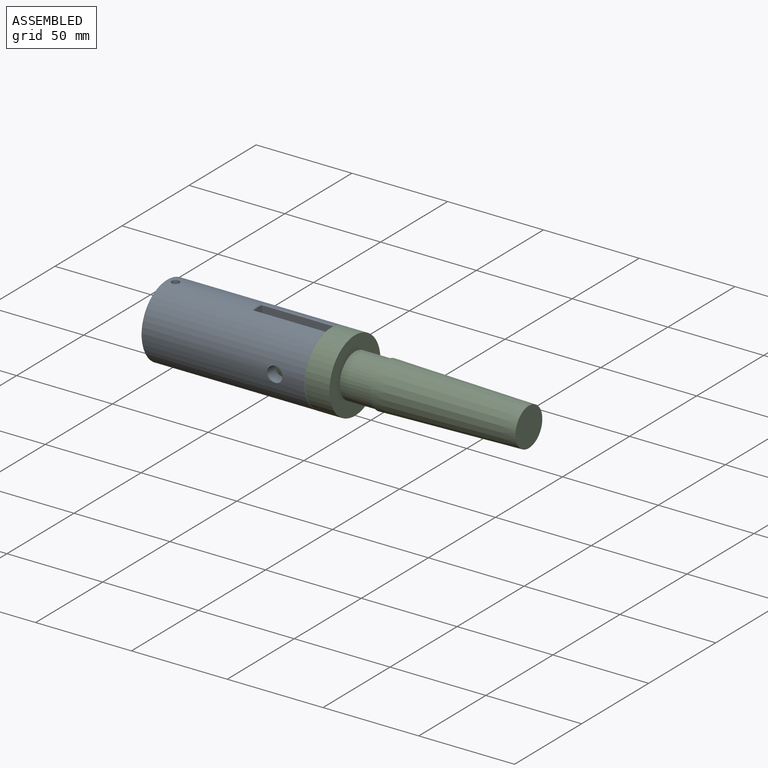
[diagram: assembled view]
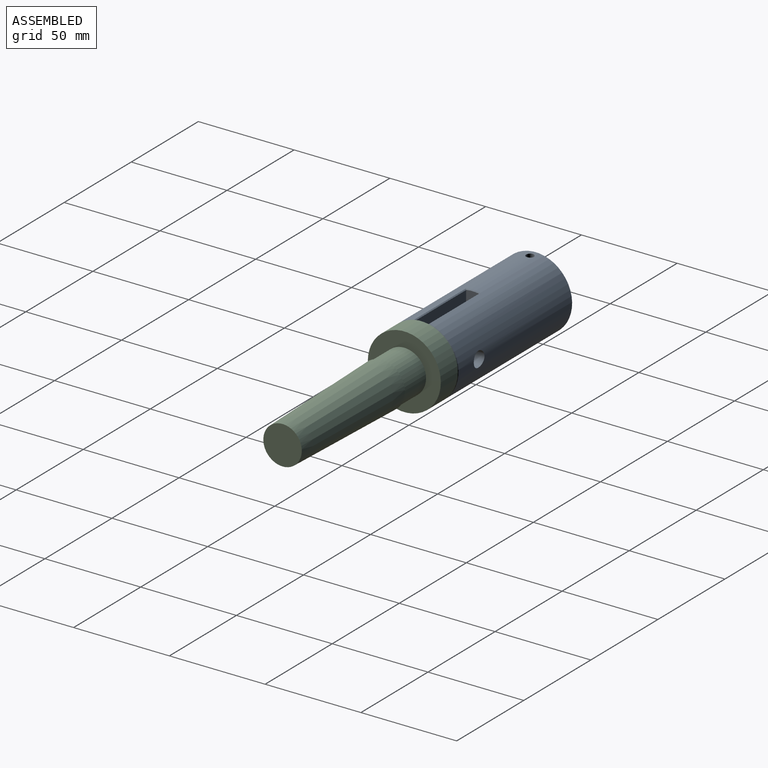
[diagram: assembled view, second angle]
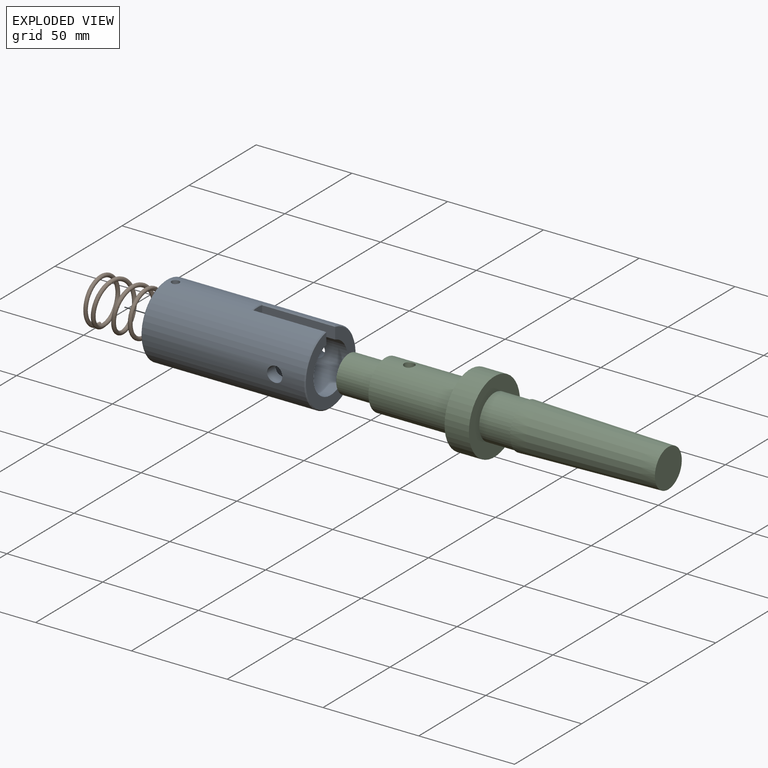
[diagram: exploded view]
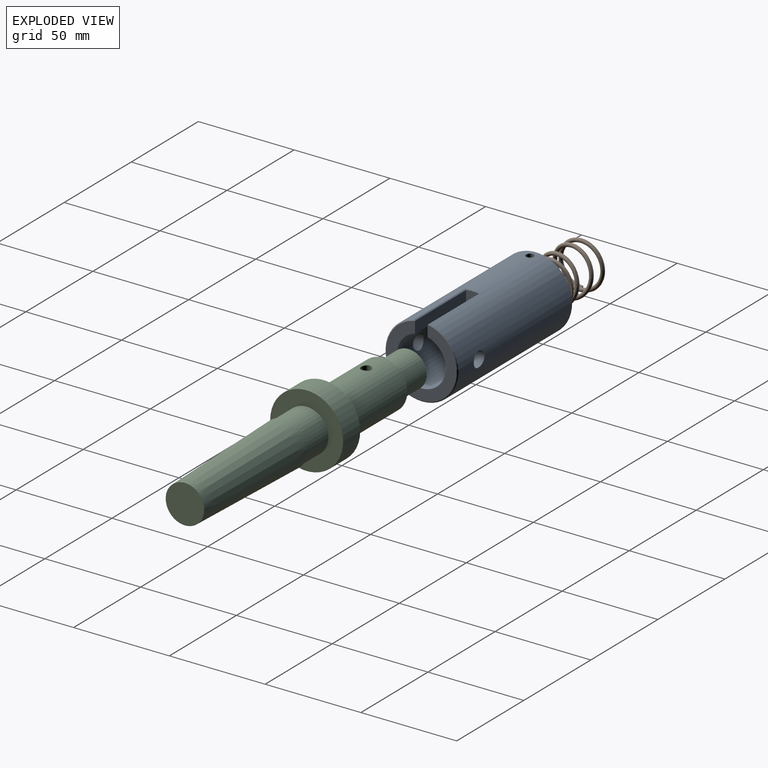
[diagram: exploded view, second angle]
ASSEMBLY  parts=3 mates=2
PART A: 24 faces, bbox 85.7x38.1x38.1 mm
  f0: plane 37.08x36.79mm, normal (1,0,0), area 534.5mm2, adj f10,f13,f14,f19
  f1: cylinder r=19.05mm len=84.71mm, axis (-1,0,0), area 9733.2mm2, adj f16,f17,f18,f19,f20,f21,f22,f23
  f2: plane 12.7x9.53mm, normal (0,-0.87,-0.5), area 139.7mm2, adj f3,f7,f8,f9
  f3: plane 12.7x9.53mm, normal (0,-0.87,0.5), area 139.7mm2, adj f2,f4,f8,f9
  f4: plane 14.66x9.53mm, normal (0,0,1), area 139.7mm2, adj f3,f5,f8,f9
  f5: plane 12.7x9.53mm, normal (0,0.87,0.5), area 139.7mm2, adj f4,f6,f8,f9
  f6: plane 12.7x9.53mm, normal (0,0.87,-0.5), area 139.7mm2, adj f5,f7,f8,f9
  f7: plane 14.66x9.53mm, normal (0,0,-1), area 126.9mm2, adj f2,f6,f8,f9,f16
  f8: plane 37.08x37.08mm, normal (-1,0,0), area 521.4mm2, adj f2,f3,f4,f5,f6,f7,f20
  f9: plane 29.33x25.4mm, normal (-1,0,0), area 327.9mm2, adj f2,f3,f4,f5,f6,f7,f12
  f10: cylinder r=12.7mm len=63.5mm, axis (1,0,0), area 4710.8mm2, adj f0,f11,f13,f14,f15,f17,f18
  f11: plane 25.4x25.4mm, normal (1,0,0), area 275.8mm2, adj f10,f12
  f12: cylinder r=8.57mm len=17.15mm, axis (-1,0,0), area 684.1mm2, adj f9,f11
  f13: plane 38.1x5.98mm, normal (0,1,0), area 228mm2, adj f0,f10,f15,f19,f23
  f14: plane 38.1x5.98mm, normal (0,-1,0), area 228mm2, adj f0,f10,f15,f19,f21
  f15: plane 6.77x6.36mm, normal (1,0,0), area 39.4mm2, adj f10,f13,f14,f21,f22,f23
  f16: cylinder r=2.02mm len=6.35mm, axis (0,0,-1), area 79.9mm2, adj f1,f7
  f17: cylinder r=4mm len=8mm, axis (0,-1,0), area 162.4mm2, adj f1,f10
  f18: cylinder r=4mm len=8mm, axis (0,-1,0), area 162.4mm2, adj f1,f10
  f19: cone r=18.54mm half-angle=45deg, axis (-1,0,0), area 79.7mm2, adj f0,f1,f13,f14,f21,f23
  f20: cone r=19.05mm half-angle=45deg, axis (1,0,0), area 84.8mm2, adj f1,f8
  f21: plane 38.53x0.52mm, normal (0,-0.63,0.77), area 25.1mm2, adj f1,f14,f15,f19,f22
  f22: cone r=18.62mm half-angle=45deg, axis (-1,0,0), area 4.4mm2, adj f1,f15,f21,f23
  f23: plane 38.53x0.52mm, normal (0,0.63,0.77), area 25.1mm2, adj f1,f13,f15,f19,f22
PART B: 8 faces, bbox 27.3x27.3x27.7 mm
  f0: bspline ~26.98x26.82mm, area 382.1mm2, adj f1,f2,f6,f7
  f1: plane 2.32x1.3mm, normal (0,-1,0), area 1.6mm2, adj f0,f7
  f2: bspline ~26.98x26.98mm, area 917.3mm2, adj f0,f4
  f3: plane 2.19x1.1mm, normal (0,1,-0.03), area 1.6mm2, adj f4,f5
  f4: bspline ~26.98x26.82mm, area 382.7mm2, adj f2,f3,f5
  f5: plane 23.78x12.18mm, normal (0,0,-1), area 56.2mm2, adj f3,f4
  f6: cylinder r=12.32mm len=0.8mm, axis (0,0,1), area 0mm2, adj f0,f7
  f7: plane 23.78x12.19mm, normal (0,0,1), area 55.9mm2, adj f0,f1,f6
PART C: 13 faces, bbox 166.7x38.1x38.1 mm
  f0: cylinder r=19.05mm len=38.1mm, axis (-1,0,0), area 1520.1mm2, adj f1,f2
  f1: plane 38.1x38.1mm, normal (1,0,0), area 735.1mm2, adj f0,f7
  f2: plane 38.1x38.1mm, normal (-1,0,0), area 633.4mm2, adj f0,f3
  f3: cylinder r=12.7mm len=44.2mm, axis (1,0,0), area 3503.4mm2, adj f2,f4,f11
  f4: plane 25.4x25.4mm, normal (-1,0,0), area 221.7mm2, adj f3,f5
  f5: cylinder r=9.53mm len=19.05mm, axis (1,0,0), area 1140.1mm2, adj f4,f6
  f6: plane 19.05x19.05mm, normal (-1,0,0), area 285mm2, adj f5
  f7: cylinder r=11.35mm len=22.71mm, axis (-1,0,0), area 1177.8mm2, adj f1,f10
  f8: cone r=11.89mm half-angle=1.4deg, axis (-1,0,0), area 5116.2mm2, adj f9,f10
  f9: plane 20.07x20.07mm, normal (1,0,0), area 316.2mm2, adj f8
  f10: plane 23.77x23.77mm, normal (-1,0,0), area 38.9mm2, adj f7,f8
  f11: cylinder r=2.71mm len=12.7mm, axis (0,0,1), area 213.4mm2, adj f3,f12
  f12: plane 5.41x5.41mm, normal (0,0,1), area 23mm2, adj f11
PLACE A t=(6.64,44.49,-48.21)mm
PLACE B rot(axis=(0.71,0,-0.71),180deg) t=(19.34,44.49,-48.21)mm
PLACE C t=(82.84,44.49,-48.21)mm
MATE slider A.f1 <-> C.f0  axis (1,0,0) through (82.84,44.49,-48.21)mm
MATE fastened A.f1 <-> B.f6  axis (1,0,0) through (19.34,44.49,-48.21)mm
